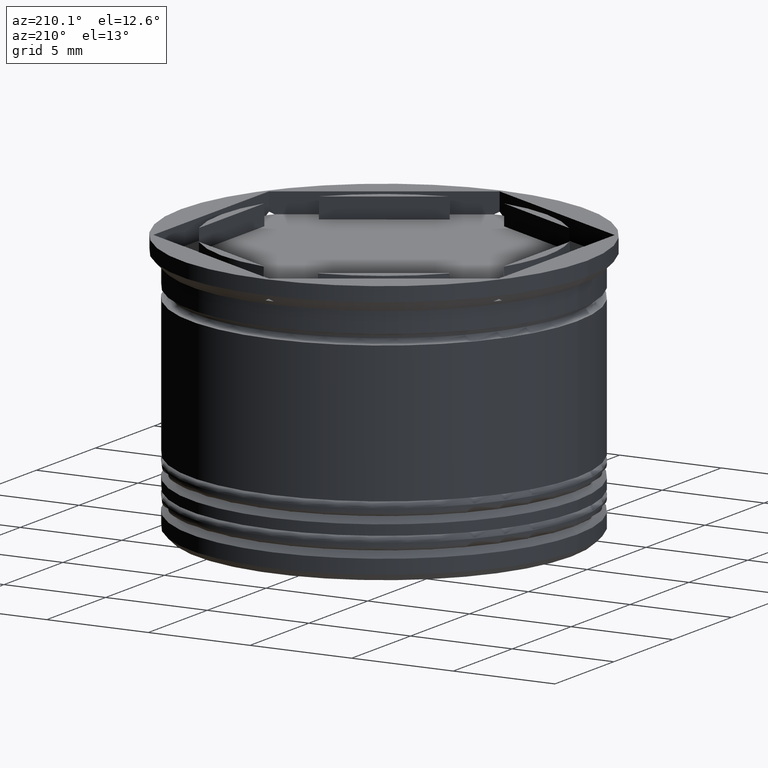
[diagram: clean part render]
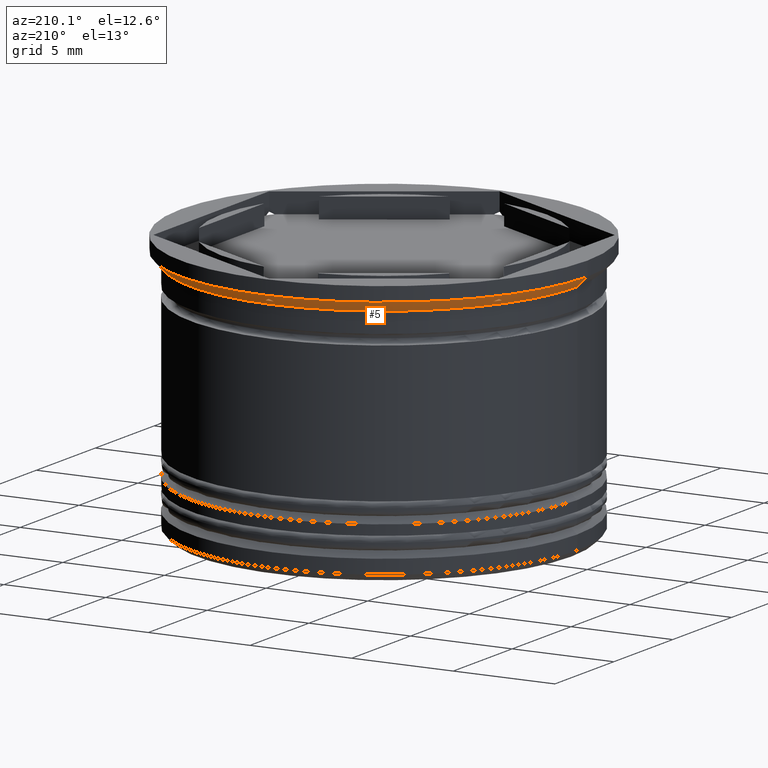
[diagram: same view with one face highlighted and labeled with its STEP entity id]
A machine part, auxiliary view. The second image highlights one B-rep face of the part: STEP entity #5.
In plain terms, the highlighted conical surface has half-angle 45 deg.
Its self-contained STEP definition (entity closure, byte-faithful):
#5 = ADVANCED_FACE ( 'NONE', ( #2059, #1212, #1353, #43 ), #1229, .T. ) ;
#19 = CIRCLE ( 'NONE', #552, 9.699999999999997513 ) ;
#40 = VERTEX_POINT ( 'NONE', #59 ) ;
#43 = FACE_OUTER_BOUND ( 'NONE', #1015, .T. ) ;
#49 = CARTESIAN_POINT ( 'NONE',  ( 0.06737994717715718729, 9.776052745582921588, -0.9239472544170742596 ) ) ;
#59 = CARTESIAN_POINT ( 'NONE',  ( -8.297221268969607877, 5.024551643058147832, -1.000000000000000000 ) ) ;
#68 = DIRECTION ( 'NONE',  ( 1.000000000000000000, 0.000000000000000000, 0.000000000000000000 ) ) ;
#84 = ORIENTED_EDGE ( 'NONE', *, *, #1690, .F. ) ;
#115 = EDGE_LOOP ( 'NONE', ( #84, #1402, #1095 ) ) ;
#124 = CARTESIAN_POINT ( 'NONE',  ( 8.500000000000000000, 4.673328578219161145, -1.000000000000000000 ) ) ;
#127 = EDGE_CURVE ( 'NONE', #177, #1647, #1418, .T. ) ;
#153 = CARTESIAN_POINT ( 'NONE',  ( 9.499999999999998224, 0.000000000000000000, -1.199999999999999067 ) ) ;
#166 = AXIS2_PLACEMENT_3D ( 'NONE', #1925, #1032, #1395 ) ;
#177 = VERTEX_POINT ( 'NONE', #153 ) ;
#179 = DIRECTION ( 'NONE',  ( -0.000000000000000000, -0.000000000000000000, -1.000000000000000000 ) ) ;
#190 = CARTESIAN_POINT ( 'NONE',  ( 0.2027787310303922896, 9.697880221277308976, -1.000000000000000000 ) ) ;
#218 = ORIENTED_EDGE ( 'NONE', *, *, #1873, .T. ) ;
#232 = CIRCLE ( 'NONE', #1446, 9.699999999999997513 ) ;
#234 = CIRCLE ( 'NONE', #1447, 10.00000000000000000 ) ;
#237 = B_SPLINE_CURVE_WITH_KNOTS ( 'NONE', 3,
 ( #2072, #1396, #1901, #880 ),
 .UNSPECIFIED., .F., .F.,
 ( 4, 4 ),
 ( 0.01704092202293523012, 0.01730192662281647767 ),
 .UNSPECIFIED. ) ;
#258 = B_SPLINE_CURVE_WITH_KNOTS ( 'NONE', 3,
 ( #1177, #1148, #315, #981 ),
 .UNSPECIFIED., .F., .F.,
 ( 4, 4 ),
 ( 0.01822403315942615690, 0.01848585035615632477 ),
 .UNSPECIFIED. ) ;
#265 = CARTESIAN_POINT ( 'NONE',  ( 0.000000000000000000, 9.814954576223637872, -0.8850454237763590859 ) ) ;
#268 = CARTESIAN_POINT ( 'NONE',  ( 8.500000000000000000, 4.829775330622932294, -0.9238964025208142861 ) ) ;
#270 = EDGE_LOOP ( 'NONE', ( #1436, #1954, #290 ) ) ;
#290 = ORIENTED_EDGE ( 'NONE', *, *, #2167, .T. ) ;
#315 = CARTESIAN_POINT ( 'NONE',  ( -0.06730142371672365176, 9.776098081123940631, -0.9239019188760544399 ) ) ;
#316 = CARTESIAN_POINT ( 'NONE',  ( 0.000000000000000000, 0.000000000000000000, -1.000000000000000000 ) ) ;
#334 = VERTEX_POINT ( 'NONE', #190 ) ;
#352 = EDGE_CURVE ( 'NONE', #1510, #716, #258, .T. ) ;
#353 = DIRECTION ( 'NONE',  ( -1.000000000000000000, 0.000000000000000000, 0.000000000000000000 ) ) ;
#368 = CARTESIAN_POINT ( 'NONE',  ( 0.000000000000000000, 0.000000000000000000, -0.6999999999999968470 ) ) ;
#441 = ORIENTED_EDGE ( 'NONE', *, *, #1597, .F. ) ;
#490 = CARTESIAN_POINT ( 'NONE',  ( -8.500000000000001776, 4.907477288111815383, -0.8850454237763583087 ) ) ;
#515 = DIRECTION ( 'NONE',  ( 1.000000000000000000, 0.000000000000000000, 0.000000000000000000 ) ) ;
#517 = ORIENTED_EDGE ( 'NONE', *, *, #2131, .F. ) ;
#551 = VECTOR ( 'NONE', #1285, 1000.000000000000000 ) ;
#552 = AXIS2_PLACEMENT_3D ( 'NONE', #1387, #2075, #68 ) ;
#555 = DIRECTION ( 'NONE',  ( 1.000000000000000000, 0.000000000000000000, 0.000000000000000000 ) ) ;
#569 = CARTESIAN_POINT ( 'NONE',  ( -8.297221268969607877, 5.024551643058147832, -1.000000000000000000 ) ) ;
#607 = VERTEX_POINT ( 'NONE', #2086 ) ;
#613 = CARTESIAN_POINT ( 'NONE',  ( 0.2027787310303922896, 9.697880221277308976, -1.000000000000000000 ) ) ;
#632 = CARTESIAN_POINT ( 'NONE',  ( -10.00000000000000000, 1.224646799147353256E-15, -0.6999999999999968470 ) ) ;
#634 = CARTESIAN_POINT ( 'NONE',  ( 8.432698576283275571, 4.946333783211517066, -0.9239019188760537737 ) ) ;
#696 = CARTESIAN_POINT ( 'NONE',  ( 10.00000000000000000, 0.000000000000000000, -0.6999999999999968470 ) ) ;
#716 = VERTEX_POINT ( 'NONE', #265 ) ;
#791 = DIRECTION ( 'NONE',  ( -0.000000000000000000, -0.000000000000000000, -1.000000000000000000 ) ) ;
#858 = CARTESIAN_POINT ( 'NONE',  ( 8.500000000000000000, 4.907477288111820712, -0.8850454237763569765 ) ) ;
#880 = CARTESIAN_POINT ( 'NONE',  ( -8.500000000000001776, 4.907477288111815383, -0.8850454237763583087 ) ) ;
#895 = AXIS2_PLACEMENT_3D ( 'NONE', #316, #179, #515 ) ;
#921 = CARTESIAN_POINT ( 'NONE',  ( 0.000000000000000000, 9.814954576223637872, -0.8850454237763590859 ) ) ;
#973 = CARTESIAN_POINT ( 'NONE',  ( 8.297221268969604324, 5.024551643058150496, -1.000000000000000000 ) ) ;
#981 = CARTESIAN_POINT ( 'NONE',  ( 0.000000000000000000, 9.814954576223637872, -0.8850454237763590859 ) ) ;
#1015 = EDGE_LOOP ( 'NONE', ( #1876, #1672, #441, #2107 ) ) ;
#1017 = EDGE_CURVE ( 'NONE', #1794, #1709, #237, .T. ) ;
#1031 = DIRECTION ( 'NONE',  ( -0.000000000000000000, -0.000000000000000000, 1.000000000000000000 ) ) ;
#1032 = DIRECTION ( 'NONE',  ( -0.000000000000000000, -0.000000000000000000, 1.000000000000000000 ) ) ;
#1095 = ORIENTED_EDGE ( 'NONE', *, *, #1220, .F. ) ;
#1108 = CARTESIAN_POINT ( 'NONE',  ( 8.500000000000000000, 4.673328578219161145, -1.000000000000000000 ) ) ;
#1122 = CARTESIAN_POINT ( 'NONE',  ( -0.2027787310303966195, 9.697880221277310753, -1.000000000000000000 ) ) ;
#1128 = EDGE_LOOP ( 'NONE', ( #1862, #218, #517 ) ) ;
#1135 = CARTESIAN_POINT ( 'NONE',  ( 0.000000000000000000, 0.000000000000000000, -0.6999999999999968470 ) ) ;
#1148 = CARTESIAN_POINT ( 'NONE',  ( -0.1348882983895599019, 9.737076780837895740, -0.9622312573273492653 ) ) ;
#1151 = CARTESIAN_POINT ( 'NONE',  ( -8.432620052822842993, 4.946379118752529003, -0.9239472544170738155 ) ) ;
#1161 = VECTOR ( 'NONE', #2132, 1000.000000000000000 ) ;
#1177 = CARTESIAN_POINT ( 'NONE',  ( -0.2027787310303966195, 9.697880221277310753, -1.000000000000000000 ) ) ;
#1212 = FACE_BOUND ( 'NONE', #270, .T. ) ;
#1220 = EDGE_CURVE ( 'NONE', #2017, #1922, #1756, .T. ) ;
#1229 = CONICAL_SURFACE ( 'NONE', #1550, 10.00000000000000000, 0.7853981633974500554 ) ;
#1279 = DIRECTION ( 'NONE',  ( 1.000000000000000000, 4.618527782440651208E-14, 0.000000000000000000 ) ) ;
#1285 = DIRECTION ( 'NONE',  ( -0.7071067811865487940, 8.659560562354948882E-17, 0.7071067811865463515 ) ) ;
#1294 = EDGE_CURVE ( 'NONE', #1349, #1922, #232, .T. ) ;
#1325 = CARTESIAN_POINT ( 'NONE',  ( -8.500000000000001776, 4.673328578219158480, -1.000000000000000000 ) ) ;
#1349 = VERTEX_POINT ( 'NONE', #973 ) ;
#1353 = FACE_BOUND ( 'NONE', #1128, .T. ) ;
#1387 = CARTESIAN_POINT ( 'NONE',  ( 0.000000000000000000, 0.000000000000000000, -1.000000000000000000 ) ) ;
#1395 = DIRECTION ( 'NONE',  ( 1.000000000000000000, 0.000000000000000000, 0.000000000000000000 ) ) ;
#1396 = CARTESIAN_POINT ( 'NONE',  ( -8.500000000000001776, 4.751647686047522079, -0.9622669149654721199 ) ) ;
#1402 = ORIENTED_EDGE ( 'NONE', *, *, #1294, .T. ) ;
#1403 = CARTESIAN_POINT ( 'NONE',  ( 10.00000000000000000, 0.000000000000000000, -0.6999999999999968470 ) ) ;
#1418 = LINE ( 'NONE', #1403, #1161 ) ;
#1423 = CARTESIAN_POINT ( 'NONE',  ( 8.365111701610441486, 4.985355083497563733, -0.9622312573273479330 ) ) ;
#1435 = CARTESIAN_POINT ( 'NONE',  ( 0.1349689590794702632, 9.737030211366862531, -0.9622761304077316336 ) ) ;
#1436 = ORIENTED_EDGE ( 'NONE', *, *, #1763, .F. ) ;
#1445 = EDGE_CURVE ( 'NONE', #177, #607, #1853, .T. ) ;
#1446 = AXIS2_PLACEMENT_3D ( 'NONE', #2136, #791, #1279 ) ;
#1447 = AXIS2_PLACEMENT_3D ( 'NONE', #1135, #1852, #353 ) ;
#1484 = CIRCLE ( 'NONE', #895, 9.699999999999997513 ) ;
#1510 = VERTEX_POINT ( 'NONE', #1122 ) ;
#1520 = VERTEX_POINT ( 'NONE', #1807 ) ;
#1533 = EDGE_CURVE ( 'NONE', #607, #1520, #1643, .T. ) ;
#1535 = B_SPLINE_CURVE_WITH_KNOTS ( 'NONE', 3,
 ( #921, #49, #1435, #613 ),
 .UNSPECIFIED., .F., .F.,
 ( 4, 4 ),
 ( 0.008247477501769861358, 0.008508082499550503539 ),
 .UNSPECIFIED. ) ;
#1550 = AXIS2_PLACEMENT_3D ( 'NONE', #368, #1031, #555 ) ;
#1576 = CARTESIAN_POINT ( 'NONE',  ( -8.365031040920529293, 4.985401652968591613, -0.9622761304077311895 ) ) ;
#1590 = CARTESIAN_POINT ( 'NONE',  ( 8.500000000000000000, 4.907477288111820712, -0.8850454237763569765 ) ) ;
#1597 = EDGE_CURVE ( 'NONE', #1647, #1520, #234, .T. ) ;
#1643 = LINE ( 'NONE', #632, #551 ) ;
#1647 = VERTEX_POINT ( 'NONE', #696 ) ;
#1672 = ORIENTED_EDGE ( 'NONE', *, *, #1533, .T. ) ;
#1690 = EDGE_CURVE ( 'NONE', #1349, #2017, #1720, .T. ) ;
#1709 = VERTEX_POINT ( 'NONE', #1903 ) ;
#1720 = B_SPLINE_CURVE_WITH_KNOTS ( 'NONE', 3,
 ( #2063, #1423, #634, #1590 ),
 .UNSPECIFIED., .F., .F.,
 ( 4, 4 ),
 ( 0.01822403315942613955, 0.01848585035615630395 ),
 .UNSPECIFIED. ) ;
#1756 = B_SPLINE_CURVE_WITH_KNOTS ( 'NONE', 3,
 ( #1946, #268, #1778, #124 ),
 .UNSPECIFIED., .F., .F.,
 ( 4, 4 ),
 ( 0.007081054265521771057, 0.007339969732947485698 ),
 .UNSPECIFIED. ) ;
#1763 = EDGE_CURVE ( 'NONE', #716, #334, #1535, .T. ) ;
#1778 = CARTESIAN_POINT ( 'NONE',  ( 8.500000000000000000, 4.751733060314975887, -0.9622257828001227198 ) ) ;
#1794 = VERTEX_POINT ( 'NONE', #1325 ) ;
#1807 = CARTESIAN_POINT ( 'NONE',  ( -10.00000000000000000, 1.224646799147353256E-15, -0.6999999999999968470 ) ) ;
#1852 = DIRECTION ( 'NONE',  ( -0.000000000000000000, -0.000000000000000000, 1.000000000000000000 ) ) ;
#1853 = CIRCLE ( 'NONE', #166, 9.499999999999998224 ) ;
#1862 = ORIENTED_EDGE ( 'NONE', *, *, #1017, .F. ) ;
#1873 = EDGE_CURVE ( 'NONE', #1794, #40, #19, .T. ) ;
#1876 = ORIENTED_EDGE ( 'NONE', *, *, #1445, .T. ) ;
#1901 = CARTESIAN_POINT ( 'NONE',  ( -8.500000000000001776, 4.829692282531611980, -0.9239379265664595664 ) ) ;
#1903 = CARTESIAN_POINT ( 'NONE',  ( -8.500000000000001776, 4.907477288111815383, -0.8850454237763583087 ) ) ;
#1922 = VERTEX_POINT ( 'NONE', #1108 ) ;
#1925 = CARTESIAN_POINT ( 'NONE',  ( 0.000000000000000000, 0.000000000000000000, -1.199999999999999067 ) ) ;
#1946 = CARTESIAN_POINT ( 'NONE',  ( 8.500000000000000000, 4.907477288111820712, -0.8850454237763569765 ) ) ;
#1954 = ORIENTED_EDGE ( 'NONE', *, *, #352, .F. ) ;
#2017 = VERTEX_POINT ( 'NONE', #858 ) ;
#2059 = FACE_BOUND ( 'NONE', #115, .T. ) ;
#2063 = CARTESIAN_POINT ( 'NONE',  ( 8.297221268969604324, 5.024551643058150496, -1.000000000000000000 ) ) ;
#2067 = B_SPLINE_CURVE_WITH_KNOTS ( 'NONE', 3,
 ( #490, #1151, #1576, #569 ),
 .UNSPECIFIED., .F., .F.,
 ( 4, 4 ),
 ( 0.008247477501769871766, 0.008508082499550519151 ),
 .UNSPECIFIED. ) ;
#2072 = CARTESIAN_POINT ( 'NONE',  ( -8.500000000000001776, 4.673328578219158480, -1.000000000000000000 ) ) ;
#2075 = DIRECTION ( 'NONE',  ( -0.000000000000000000, -0.000000000000000000, -1.000000000000000000 ) ) ;
#2086 = CARTESIAN_POINT ( 'NONE',  ( -9.499999999999998224, 1.163414459189985288E-15, -1.199999999999999067 ) ) ;
#2107 = ORIENTED_EDGE ( 'NONE', *, *, #127, .F. ) ;
#2131 = EDGE_CURVE ( 'NONE', #1709, #40, #2067, .T. ) ;
#2132 = DIRECTION ( 'NONE',  ( 0.7071067811865487940, 0.000000000000000000, 0.7071067811865463515 ) ) ;
#2136 = CARTESIAN_POINT ( 'NONE',  ( 0.000000000000000000, 0.000000000000000000, -1.000000000000000000 ) ) ;
#2167 = EDGE_CURVE ( 'NONE', #1510, #334, #1484, .T. ) ;